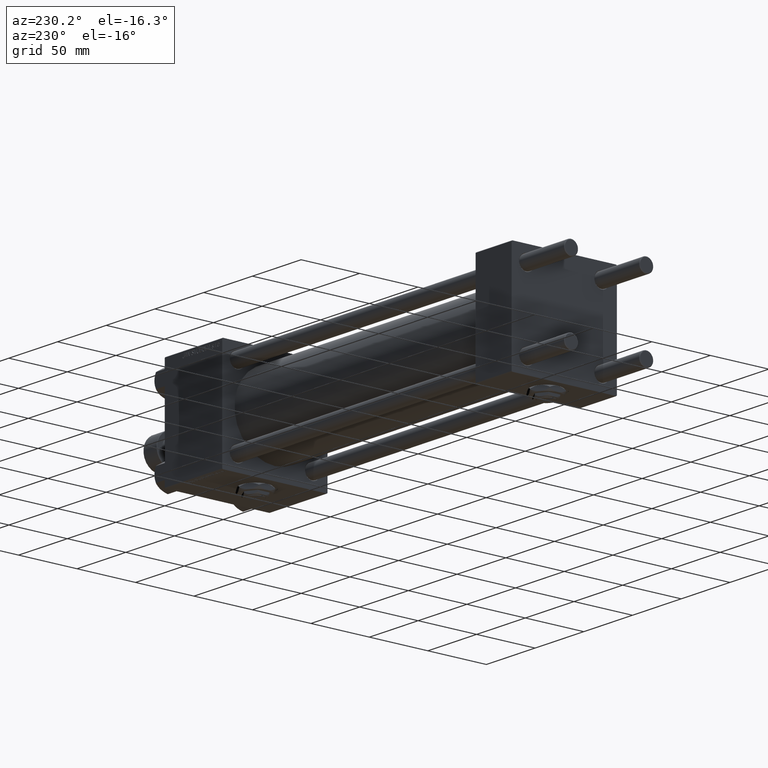
[diagram: clean part render]
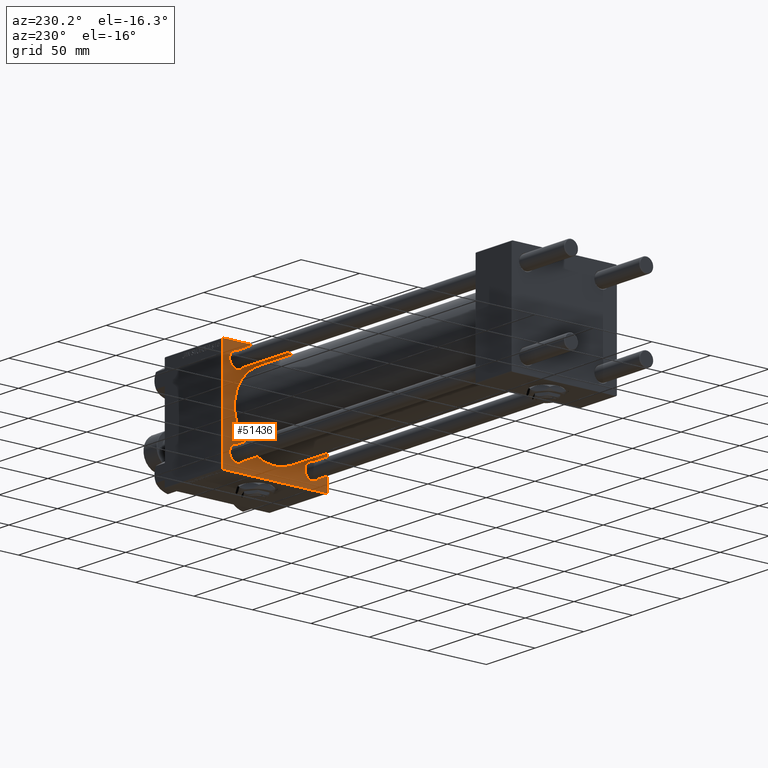
[diagram: same view with one face highlighted and labeled with its STEP entity id]
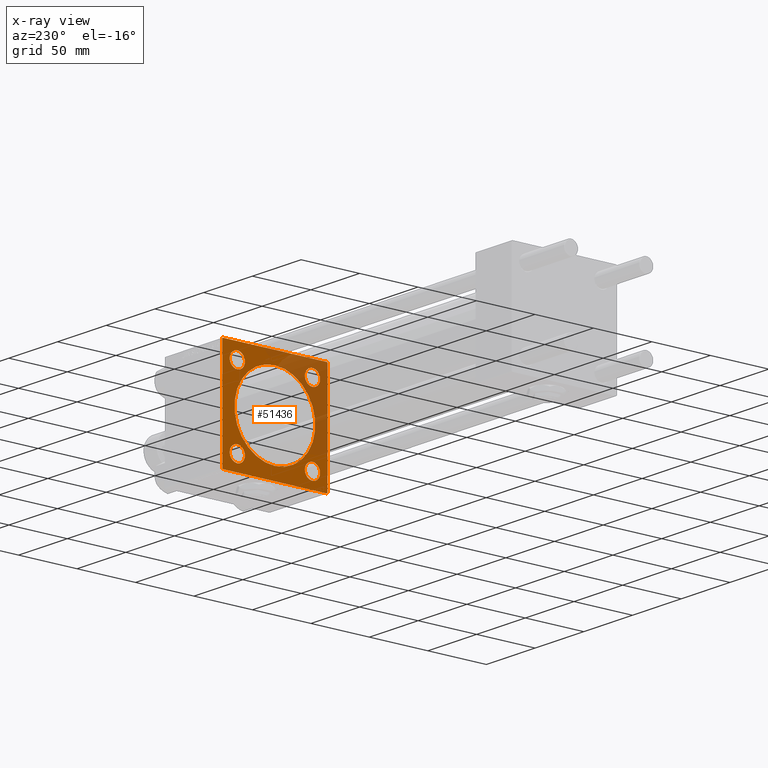
[diagram: x-ray of the same camera — body ghosted, the highlighted face saturated]
A machine part, auxiliary view. The second image highlights one B-rep face of the part: STEP entity #51436.
The next image is the same camera in x-ray: the body ghosted, the highlighted face saturated — about 31% of this face is hidden behind the body in this view.
In plain terms, the highlighted planar face has unit normal (-1, 0, 0).
Its self-contained STEP definition (entity closure, byte-faithful):
#267 = EDGE_CURVE ( 'NONE', #34158, #3164, #21137, .T. ) ;
#1711 = EDGE_LOOP ( 'NONE', ( #19058, #34906, #8849, #43700, #15576, #22827, #42815, #23357 ) ) ;
#3077 = EDGE_CURVE ( 'NONE', #29177, #46332, #27586, .T. ) ;
#3164 = VERTEX_POINT ( 'NONE', #24148 ) ;
#3979 = VERTEX_POINT ( 'NONE', #12768 ) ;
#4074 = AXIS2_PLACEMENT_3D ( 'NONE', #42510, #30064, #50173 ) ;
#4116 = CARTESIAN_POINT ( 'NONE',  ( 297.0000000000000000, 44.49999999999995737, 45.00000000000000000 ) ) ;
#4280 = ORIENTED_EDGE ( 'NONE', *, *, #48349, .T. ) ;
#4507 = EDGE_CURVE ( 'NONE', #29177, #51065, #52089, .T. ) ;
#4527 = DIRECTION ( 'NONE',  ( 0.000000000000000000, 7.709882115452478166E-17, -1.000000000000000000 ) ) ;
#5469 = VERTEX_POINT ( 'NONE', #31895 ) ;
#5501 = AXIS2_PLACEMENT_3D ( 'NONE', #39048, #30303, #10470 ) ;
#5549 = ORIENTED_EDGE ( 'NONE', *, *, #29684, .T. ) ;
#6337 = VECTOR ( 'NONE', #4527, 1000.000000000000000 ) ;
#6544 = VERTEX_POINT ( 'NONE', #28261 ) ;
#6635 = VERTEX_POINT ( 'NONE', #42014 ) ;
#6817 = DIRECTION ( 'NONE',  ( 0.000000000000000000, 0.000000000000000000, 1.000000000000000000 ) ) ;
#7488 = VERTEX_POINT ( 'NONE', #47558 ) ;
#7498 = DIRECTION ( 'NONE',  ( 0.000000000000000000, 0.7071067811865474617, -0.7071067811865474617 ) ) ;
#7758 = FACE_BOUND ( 'NONE', #8998, .T. ) ;
#8195 = CIRCLE ( 'NONE', #23423, 6.500000000000005329 ) ;
#8332 = DIRECTION ( 'NONE',  ( 0.000000000000000000, -0.7071067811865525687, 0.7071067811865425767 ) ) ;
#8345 = CARTESIAN_POINT ( 'NONE',  ( 297.0000000000000000, -44.50000000000002842, 44.99999999999998579 ) ) ;
#8483 = EDGE_CURVE ( 'NONE', #38860, #46211, #14609, .T. ) ;
#8623 = CARTESIAN_POINT ( 'NONE',  ( 297.0000000000000000, 44.75000000000000000, -44.75000000000000000 ) ) ;
#8849 = ORIENTED_EDGE ( 'NONE', *, *, #14445, .F. ) ;
#8998 = EDGE_LOOP ( 'NONE', ( #41141, #4280 ) ) ;
#9420 = AXIS2_PLACEMENT_3D ( 'NONE', #23990, #39890, #6817 ) ;
#10113 = CIRCLE ( 'NONE', #38003, 6.499999999999950262 ) ;
#10421 = ORIENTED_EDGE ( 'NONE', *, *, #20021, .T. ) ;
#10470 = DIRECTION ( 'NONE',  ( 0.000000000000000000, 0.000000000000000000, 1.000000000000000000 ) ) ;
#11462 = FACE_BOUND ( 'NONE', #23159, .T. ) ;
#12107 = EDGE_CURVE ( 'NONE', #32670, #7488, #28228, .T. ) ;
#12768 = CARTESIAN_POINT ( 'NONE',  ( 297.0000000000000000, -45.00000000000000000, 44.50000000000004263 ) ) ;
#12912 = DIRECTION ( 'NONE',  ( 0.000000000000000000, 0.000000000000000000, 1.000000000000000000 ) ) ;
#13125 = AXIS2_PLACEMENT_3D ( 'NONE', #44021, #31849, #35827 ) ;
#13195 = CIRCLE ( 'NONE', #51989, 6.499999999999950262 ) ;
#13733 = AXIS2_PLACEMENT_3D ( 'NONE', #45189, #25075, #12912 ) ;
#14222 = CIRCLE ( 'NONE', #4074, 34.49999999999999289 ) ;
#14445 = EDGE_CURVE ( 'NONE', #3979, #43889, #44211, .T. ) ;
#14609 = CIRCLE ( 'NONE', #13733, 6.499999999999950262 ) ;
#15399 = VECTOR ( 'NONE', #44673, 1000.000000000000000 ) ;
#15576 = ORIENTED_EDGE ( 'NONE', *, *, #4507, .F. ) ;
#15809 = ORIENTED_EDGE ( 'NONE', *, *, #20137, .T. ) ;
#15864 = CARTESIAN_POINT ( 'NONE',  ( 297.0000000000000000, -32.14999999999997726, -32.15000000000001279 ) ) ;
#16042 = CARTESIAN_POINT ( 'NONE',  ( 297.0000000000000000, 45.00000000000001421, 44.49999999999994316 ) ) ;
#16419 = VERTEX_POINT ( 'NONE', #31045 ) ;
#16880 = DIRECTION ( 'NONE',  ( 0.000000000000000000, 0.000000000000000000, 1.000000000000000000 ) ) ;
#17038 = CIRCLE ( 'NONE', #9420, 6.500000000000005329 ) ;
#17113 = CARTESIAN_POINT ( 'NONE',  ( 297.0000000000000000, -44.75000000000001421, 44.75000000000001421 ) ) ;
#17731 = VECTOR ( 'NONE', #24745, 1000.000000000000114 ) ;
#18441 = VECTOR ( 'NONE', #33255, 1000.000000000000114 ) ;
#18512 = VECTOR ( 'NONE', #37750, 1000.000000000000000 ) ;
#18593 = ORIENTED_EDGE ( 'NONE', *, *, #41399, .T. ) ;
#19019 = CARTESIAN_POINT ( 'NONE',  ( 297.0000000000000000, 4.225031457058367344E-15, -34.49999999999999289 ) ) ;
#19058 = ORIENTED_EDGE ( 'NONE', *, *, #267, .T. ) ;
#19128 = FACE_OUTER_BOUND ( 'NONE', #1711, .T. ) ;
#19904 = ORIENTED_EDGE ( 'NONE', *, *, #21861, .T. ) ;
#20021 = EDGE_CURVE ( 'NONE', #6635, #5469, #35955, .T. ) ;
#20137 = EDGE_CURVE ( 'NONE', #16419, #22759, #25815, .T. ) ;
#20398 = EDGE_LOOP ( 'NONE', ( #10421, #18593 ) ) ;
#20595 = AXIS2_PLACEMENT_3D ( 'NONE', #15864, #23267, #43911 ) ;
#21137 = LINE ( 'NONE', #37056, #45657 ) ;
#21861 = EDGE_CURVE ( 'NONE', #46211, #38860, #39316, .T. ) ;
#22759 = VERTEX_POINT ( 'NONE', #19019 ) ;
#22827 = ORIENTED_EDGE ( 'NONE', *, *, #3077, .T. ) ;
#22955 = EDGE_CURVE ( 'NONE', #6544, #23271, #13195, .T. ) ;
#22987 = ORIENTED_EDGE ( 'NONE', *, *, #8483, .T. ) ;
#23159 = EDGE_LOOP ( 'NONE', ( #49587, #38144 ) ) ;
#23267 = DIRECTION ( 'NONE',  ( 1.000000000000000000, 0.000000000000000000, 0.000000000000000000 ) ) ;
#23271 = VERTEX_POINT ( 'NONE', #34791 ) ;
#23357 = ORIENTED_EDGE ( 'NONE', *, *, #48960, .T. ) ;
#23423 = AXIS2_PLACEMENT_3D ( 'NONE', #35879, #40119, #43809 ) ;
#23807 = VECTOR ( 'NONE', #7498, 1000.000000000000114 ) ;
#23990 = CARTESIAN_POINT ( 'NONE',  ( 297.0000000000000000, 32.14999999999999147, -32.15000000000000568 ) ) ;
#24148 = CARTESIAN_POINT ( 'NONE',  ( 297.0000000000000000, -44.49999999999995737, -45.00000000000000000 ) ) ;
#24745 = DIRECTION ( 'NONE',  ( -0.000000000000000000, -0.7071067811865474617, -0.7071067811865474617 ) ) ;
#25051 = CARTESIAN_POINT ( 'NONE',  ( 297.0000000000000000, 32.14999999999999147, 25.65000000000005542 ) ) ;
#25075 = DIRECTION ( 'NONE',  ( 1.000000000000000000, 0.000000000000000000, 0.000000000000000000 ) ) ;
#25097 = EDGE_CURVE ( 'NONE', #3164, #43889, #32667, .T. ) ;
#25422 = AXIS2_PLACEMENT_3D ( 'NONE', #35807, #47447, #47967 ) ;
#25561 = CARTESIAN_POINT ( 'NONE',  ( 297.0000000000000000, 44.50000000000001421, -45.00000000000000000 ) ) ;
#25565 = LINE ( 'NONE', #17113, #18441 ) ;
#25815 = CIRCLE ( 'NONE', #13125, 34.49999999999999289 ) ;
#26113 = CARTESIAN_POINT ( 'NONE',  ( 297.0000000000000000, 32.14999999999999147, 38.64999999999995595 ) ) ;
#27413 = EDGE_CURVE ( 'NONE', #7488, #32670, #8195, .T. ) ;
#27500 = AXIS2_PLACEMENT_3D ( 'NONE', #41414, #48838, #37201 ) ;
#27586 = LINE ( 'NONE', #39267, #23807 ) ;
#28109 = FACE_BOUND ( 'NONE', #20398, .T. ) ;
#28228 = CIRCLE ( 'NONE', #20595, 6.500000000000005329 ) ;
#28261 = CARTESIAN_POINT ( 'NONE',  ( 297.0000000000000000, -32.14999999999997726, 38.64999999999996305 ) ) ;
#28371 = PLANE ( 'NONE',  #25422 ) ;
#28709 = LINE ( 'NONE', #8623, #17731 ) ;
#29177 = VERTEX_POINT ( 'NONE', #4116 ) ;
#29644 = EDGE_CURVE ( 'NONE', #3979, #51065, #25565, .T. ) ;
#29684 = EDGE_CURVE ( 'NONE', #22759, #16419, #14222, .T. ) ;
#30064 = DIRECTION ( 'NONE',  ( 1.000000000000000000, 0.000000000000000000, 0.000000000000000000 ) ) ;
#30303 = DIRECTION ( 'NONE',  ( 1.000000000000000000, 0.000000000000000000, 0.000000000000000000 ) ) ;
#30796 = DIRECTION ( 'NONE',  ( 1.000000000000000000, 0.000000000000000000, 0.000000000000000000 ) ) ;
#31045 = CARTESIAN_POINT ( 'NONE',  ( 297.0000000000000000, 0.000000000000000000, 34.49999999999999289 ) ) ;
#31849 = DIRECTION ( 'NONE',  ( 1.000000000000000000, 0.000000000000000000, 0.000000000000000000 ) ) ;
#31895 = CARTESIAN_POINT ( 'NONE',  ( 297.0000000000000000, 32.14999999999999147, -38.65000000000001279 ) ) ;
#32089 = EDGE_CURVE ( 'NONE', #46332, #42389, #38007, .T. ) ;
#32667 = LINE ( 'NONE', #40099, #38533 ) ;
#32670 = VERTEX_POINT ( 'NONE', #43722 ) ;
#33255 = DIRECTION ( 'NONE',  ( -0.000000000000000000, 0.7071067811865474617, 0.7071067811865474617 ) ) ;
#33808 = DIRECTION ( 'NONE',  ( 1.000000000000000000, 0.000000000000000000, 0.000000000000000000 ) ) ;
#34158 = VERTEX_POINT ( 'NONE', #25561 ) ;
#34791 = CARTESIAN_POINT ( 'NONE',  ( 297.0000000000000000, -32.14999999999997726, 25.65000000000006253 ) ) ;
#34906 = ORIENTED_EDGE ( 'NONE', *, *, #25097, .T. ) ;
#35543 = DIRECTION ( 'NONE',  ( 0.000000000000000000, 0.000000000000000000, 1.000000000000000000 ) ) ;
#35807 = CARTESIAN_POINT ( 'NONE',  ( 297.0000000000000000, 0.000000000000000000, 0.000000000000000000 ) ) ;
#35827 = DIRECTION ( 'NONE',  ( 0.000000000000000000, 0.000000000000000000, -1.000000000000000000 ) ) ;
#35879 = CARTESIAN_POINT ( 'NONE',  ( 297.0000000000000000, -32.14999999999997726, -32.15000000000001279 ) ) ;
#35955 = CIRCLE ( 'NONE', #27500, 6.500000000000005329 ) ;
#36546 = CARTESIAN_POINT ( 'NONE',  ( 297.0000000000000000, -45.00000000000000000, 44.99999999999998579 ) ) ;
#37016 = CARTESIAN_POINT ( 'NONE',  ( 297.0000000000000000, -32.14999999999997726, 32.15000000000001279 ) ) ;
#37056 = CARTESIAN_POINT ( 'NONE',  ( 297.0000000000000000, 45.00000000000001421, -45.00000000000000000 ) ) ;
#37201 = DIRECTION ( 'NONE',  ( 0.000000000000000000, 0.000000000000000000, 1.000000000000000000 ) ) ;
#37750 = DIRECTION ( 'NONE',  ( 0.000000000000000000, 0.000000000000000000, -1.000000000000000000 ) ) ;
#38003 = AXIS2_PLACEMENT_3D ( 'NONE', #51939, #30796, #35543 ) ;
#38007 = LINE ( 'NONE', #49113, #18512 ) ;
#38144 = ORIENTED_EDGE ( 'NONE', *, *, #12107, .T. ) ;
#38533 = VECTOR ( 'NONE', #8332, 999.9999999999998863 ) ;
#38860 = VERTEX_POINT ( 'NONE', #25051 ) ;
#39048 = CARTESIAN_POINT ( 'NONE',  ( 297.0000000000000000, 32.14999999999999147, 32.15000000000000568 ) ) ;
#39267 = CARTESIAN_POINT ( 'NONE',  ( 297.0000000000000000, 44.74999999999997158, 44.74999999999997158 ) ) ;
#39316 = CIRCLE ( 'NONE', #5501, 6.499999999999950262 ) ;
#39776 = FACE_BOUND ( 'NONE', #43609, .T. ) ;
#39890 = DIRECTION ( 'NONE',  ( 1.000000000000000000, 0.000000000000000000, 0.000000000000000000 ) ) ;
#40099 = CARTESIAN_POINT ( 'NONE',  ( 297.0000000000000000, -44.74999999999968736, -44.75000000000031264 ) ) ;
#40119 = DIRECTION ( 'NONE',  ( 1.000000000000000000, 0.000000000000000000, 0.000000000000000000 ) ) ;
#40955 = EDGE_LOOP ( 'NONE', ( #19904, #22987 ) ) ;
#41141 = ORIENTED_EDGE ( 'NONE', *, *, #22955, .T. ) ;
#41399 = EDGE_CURVE ( 'NONE', #5469, #6635, #17038, .T. ) ;
#41414 = CARTESIAN_POINT ( 'NONE',  ( 297.0000000000000000, 32.14999999999999147, -32.15000000000000568 ) ) ;
#42014 = CARTESIAN_POINT ( 'NONE',  ( 297.0000000000000000, 32.14999999999999147, -25.64999999999999858 ) ) ;
#42389 = VERTEX_POINT ( 'NONE', #43275 ) ;
#42510 = CARTESIAN_POINT ( 'NONE',  ( 297.0000000000000000, 0.000000000000000000, 0.000000000000000000 ) ) ;
#42815 = ORIENTED_EDGE ( 'NONE', *, *, #32089, .T. ) ;
#43275 = CARTESIAN_POINT ( 'NONE',  ( 297.0000000000000000, 45.00000000000001421, -44.49999999999997158 ) ) ;
#43609 = EDGE_LOOP ( 'NONE', ( #15809, #5549 ) ) ;
#43700 = ORIENTED_EDGE ( 'NONE', *, *, #29644, .T. ) ;
#43722 = CARTESIAN_POINT ( 'NONE',  ( 297.0000000000000000, -32.14999999999997726, -38.65000000000001990 ) ) ;
#43809 = DIRECTION ( 'NONE',  ( 0.000000000000000000, 0.000000000000000000, 1.000000000000000000 ) ) ;
#43889 = VERTEX_POINT ( 'NONE', #49406 ) ;
#43911 = DIRECTION ( 'NONE',  ( 0.000000000000000000, 0.000000000000000000, 1.000000000000000000 ) ) ;
#44021 = CARTESIAN_POINT ( 'NONE',  ( 297.0000000000000000, 0.000000000000000000, 0.000000000000000000 ) ) ;
#44211 = LINE ( 'NONE', #36546, #6337 ) ;
#44673 = DIRECTION ( 'NONE',  ( 0.000000000000000000, -1.000000000000000000, -1.541976423090495140E-16 ) ) ;
#45189 = CARTESIAN_POINT ( 'NONE',  ( 297.0000000000000000, 32.14999999999999147, 32.15000000000000568 ) ) ;
#45657 = VECTOR ( 'NONE', #49993, 1000.000000000000000 ) ;
#46211 = VERTEX_POINT ( 'NONE', #26113 ) ;
#46332 = VERTEX_POINT ( 'NONE', #16042 ) ;
#47447 = DIRECTION ( 'NONE',  ( -1.000000000000000000, 0.000000000000000000, -0.000000000000000000 ) ) ;
#47558 = CARTESIAN_POINT ( 'NONE',  ( 297.0000000000000000, -32.14999999999997726, -25.65000000000000568 ) ) ;
#47967 = DIRECTION ( 'NONE',  ( -0.000000000000000000, 0.000000000000000000, 1.000000000000000000 ) ) ;
#48349 = EDGE_CURVE ( 'NONE', #23271, #6544, #10113, .T. ) ;
#48838 = DIRECTION ( 'NONE',  ( 1.000000000000000000, 0.000000000000000000, 0.000000000000000000 ) ) ;
#48960 = EDGE_CURVE ( 'NONE', #42389, #34158, #28709, .T. ) ;
#49113 = CARTESIAN_POINT ( 'NONE',  ( 297.0000000000000000, 45.00000000000001421, 45.00000000000000000 ) ) ;
#49406 = CARTESIAN_POINT ( 'NONE',  ( 297.0000000000000000, -44.99999999999999289, -44.49999999999997158 ) ) ;
#49587 = ORIENTED_EDGE ( 'NONE', *, *, #27413, .T. ) ;
#49993 = DIRECTION ( 'NONE',  ( 0.000000000000000000, -1.000000000000000000, 0.000000000000000000 ) ) ;
#50173 = DIRECTION ( 'NONE',  ( 0.000000000000000000, 0.000000000000000000, -1.000000000000000000 ) ) ;
#51065 = VERTEX_POINT ( 'NONE', #8345 ) ;
#51436 = ADVANCED_FACE ( 'NONE', ( #7758, #51674, #28109, #11462, #39776, #19128 ), #28371, .T. ) ;
#51674 = FACE_BOUND ( 'NONE', #40955, .T. ) ;
#51939 = CARTESIAN_POINT ( 'NONE',  ( 297.0000000000000000, -32.14999999999997726, 32.15000000000001279 ) ) ;
#51989 = AXIS2_PLACEMENT_3D ( 'NONE', #37016, #33808, #16880 ) ;
#52089 = LINE ( 'NONE', #52349, #15399 ) ;
#52349 = CARTESIAN_POINT ( 'NONE',  ( 297.0000000000000000, 45.00000000000001421, 45.00000000000000000 ) ) ;